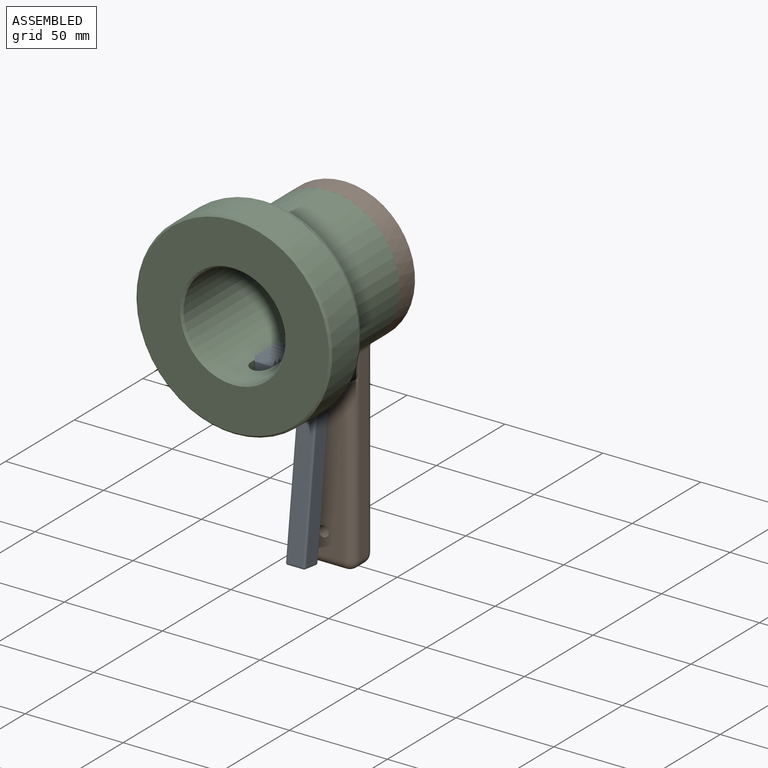
[diagram: assembled view]
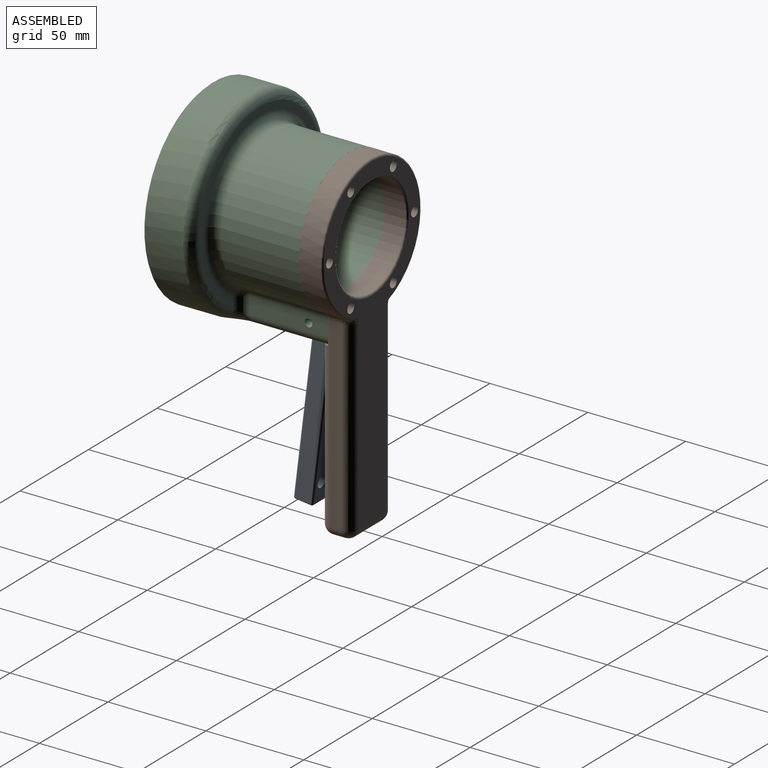
[diagram: assembled view, second angle]
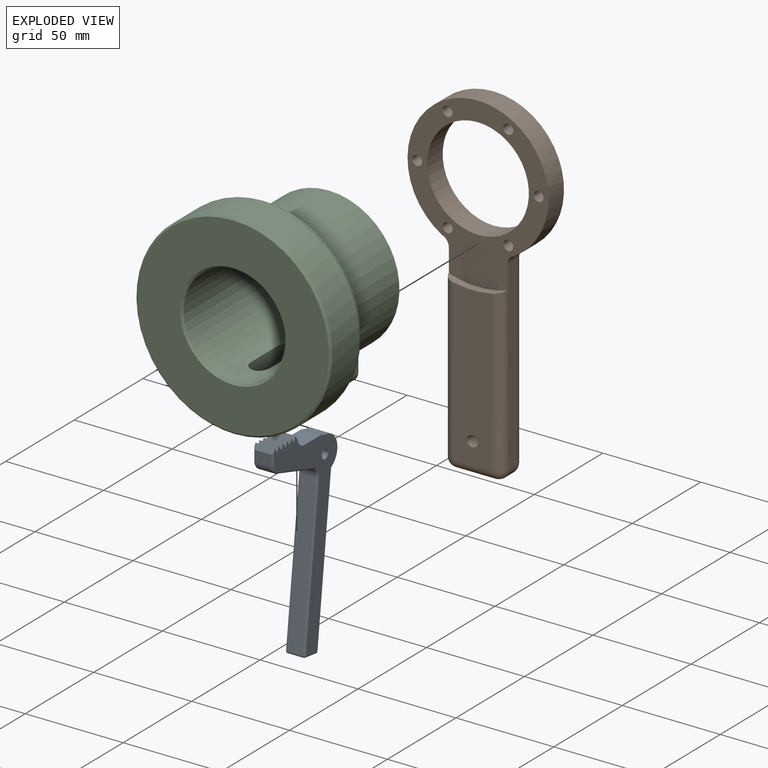
[diagram: exploded view]
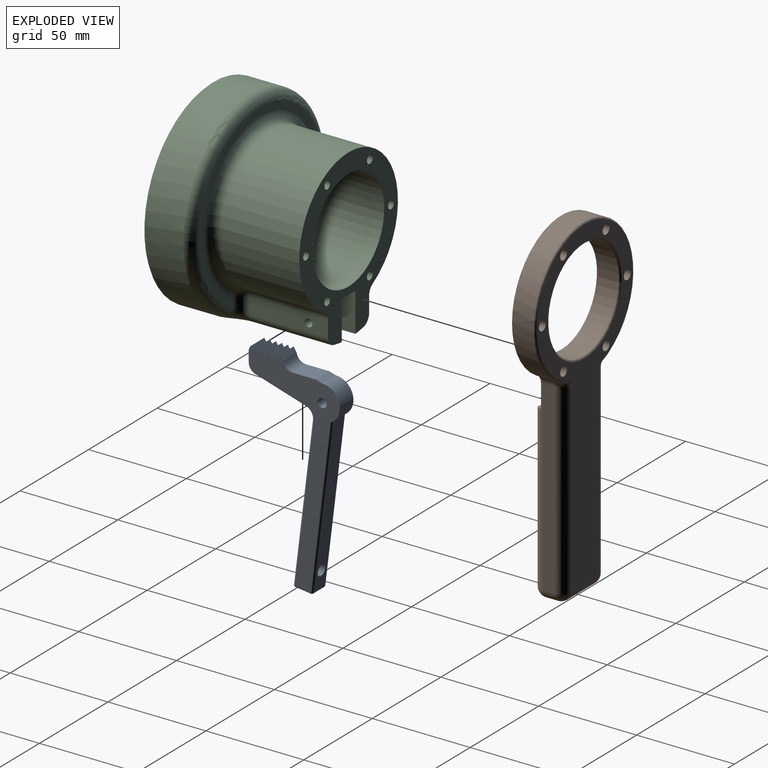
[diagram: exploded view, second angle]
ASSEMBLY  parts=3 mates=3
PART A: 48 faces, bbox 106.5x10x47.4 mm
  f0: plane 10x2.6mm, normal (-0.5,0,-0.87), area 30mm2, adj f1,f19,f21,f22
  f1: plane 10x2.6mm, normal (-0.5,0,0.87), area 30mm2, adj f0,f2,f21,f22
  f2: plane 10x2.6mm, normal (-0.5,0,-0.87), area 30mm2, adj f1,f3,f21,f22
  f3: plane 10x2.6mm, normal (-0.5,0,0.87), area 30mm2, adj f2,f4,f21,f22
  f4: plane 10x2.6mm, normal (-0.5,0,-0.87), area 29.2mm2, adj f3,f5,f21,f22,f26,f45
  f5: plane 8x5.34mm, normal (0,0,-1), area 42.7mm2, adj f4,f23,f26,f45
  f6: plane 25.76x8mm, normal (0.96,0,-0.29), area 215.2mm2, adj f23,f24,f28,f43
  f7: plane 78.56x9.65mm, normal (-0.12,0,-0.99), area 633.2mm2, adj f24,f32,f38,f41
  f8: plane 8x7.94mm, normal (0.99,0,-0.12), area 64mm2, adj f33,f34,f38,f39
  f9: plane 81.68x10.03mm, normal (0.12,0,0.99), area 634.6mm2, adj f10,f29,f34,f35,f47
  f10: cylinder r=9mm len=17.04mm, axis (0,1,0), area 228.6mm2, adj f9,f11,f21,f22,f29,f35
  f11: plane 10x3.31mm, normal (-0.96,0,0.29), area 34.6mm2, adj f10,f12,f21,f22
  f12: plane 11.79x10mm, normal (-1,0,0), area 117.9mm2, adj f11,f21,f22,f25
  f13: plane 10x2.6mm, normal (-0.5,0,0.87), area 30mm2, adj f14,f21,f22,f25
  f14: plane 10x2.6mm, normal (-0.5,0,-0.87), area 30mm2, adj f13,f15,f21,f22
  f15: plane 10x2.6mm, normal (-0.5,0,0.87), area 30mm2, adj f14,f16,f21,f22
  f16: plane 10x2.6mm, normal (-0.5,0,-0.87), area 30mm2, adj f15,f17,f21,f22
  f17: plane 10x2.6mm, normal (-0.5,0,0.87), area 30mm2, adj f16,f18,f21,f22
  f18: plane 10x2.6mm, normal (-0.5,0,-0.87), area 30mm2, adj f17,f19,f21,f22
  f19: plane 10x2.6mm, normal (-0.5,0,0.87), area 30mm2, adj f0,f18,f21,f22
  f20: cylinder r=2.3mm len=10mm, axis (0,1,0), area 144.5mm2, adj f21,f22
  f21: plane 105.55x46mm, normal (0,-1,0), area 1231.3mm2, adj f0,f1,f2,f3,f4,f10,f11,f12
  f22: plane 105.55x46mm, normal (0,1,0), area 1231.3mm2, adj f0,f1,f2,f3,f4,f10,f11,f12
  f23: cylinder r=5mm len=8mm, axis (0,1,0), area 51.1mm2, adj f5,f6,f27,f44
  f24: cylinder r=5mm len=8mm, axis (0,-1,0), area 56mm2, adj f6,f7,f30,f42
  f25: cylinder r=5mm len=10mm, axis (0,-1,0), area 68.5mm2, adj f12,f13,f21,f22
  f26: cylinder r=1mm len=7.07mm, axis (-1,0,0), area 9.4mm2, adj f4,f5,f21,f27
  f27: torus R=4mm, axis (0,-1,0), area 9.3mm2, adj f21,f23,f26,f28
  f28: cylinder r=1mm len=26.05mm, axis (-0.29,0,-0.96), area 42.3mm2, adj f6,f21,f27,f30
  f29: cylinder r=1mm len=81.8mm, axis (0.99,0,-0.12), area 128.8mm2, adj f9,f10,f21,f31
  f30: torus R=6mm, axis (0,-1,0), area 11.8mm2, adj f21,f24,f28,f32
  f31: sphere r=1mm, area 1.6mm2, adj f29,f33,f34
  f32: cylinder r=1mm len=78.68mm, axis (-0.99,0,0.12), area 124.3mm2, adj f7,f21,f30,f36
  f33: cylinder r=1mm len=8.06mm, axis (-0.12,0,-0.99), area 12.6mm2, adj f8,f21,f31,f36
  f34: cylinder r=1mm len=8mm, axis (0,1,0), area 12.6mm2, adj f8,f9,f31,f37
  f35: cylinder r=1mm len=81.8mm, axis (-0.99,0,0.12), area 128.8mm2, adj f9,f10,f22,f37
  f36: sphere r=1mm, area 1.6mm2, adj f32,f33,f38
  f37: sphere r=1mm, area 1.5mm2, adj f34,f35,f39
  f38: cylinder r=1mm len=8mm, axis (0,1,0), area 12.6mm2, adj f7,f8,f36,f40
  f39: cylinder r=1mm len=8.06mm, axis (0.12,0,0.99), area 12.6mm2, adj f8,f22,f37,f40
  f40: sphere r=1mm, area 1.6mm2, adj f38,f39,f41
  f41: cylinder r=1mm len=78.68mm, axis (0.99,0,-0.12), area 124.3mm2, adj f7,f22,f40,f42
  f42: torus R=6mm, axis (0,-1,0), area 11.8mm2, adj f22,f24,f41,f43
  f43: cylinder r=1mm len=26.05mm, axis (0.29,0,0.96), area 42.3mm2, adj f6,f22,f42,f44
  f44: torus R=4mm, axis (0,-1,0), area 9.3mm2, adj f22,f23,f43,f45
  f45: cylinder r=1mm len=7.07mm, axis (1,0,0), area 9.4mm2, adj f4,f5,f22,f44
  f46: cone r=0mm half-angle=59deg, axis (0.12,0,0.99), area 27.7mm2, adj f47
  f47: cylinder r=2.75mm len=7.62mm, axis (0.12,0,0.99), area 121mm2, adj f9,f46
PART B: 37 faces, bbox 78.4x16.5x175.4 mm
  f0: plane 86x72mm, normal (0,-1,0), area 2258.7mm2, adj f1,f2,f7,f8,f9,f10,f11,f12
  f1: cylinder r=36mm len=72mm, axis (0,1,0), area 2083.6mm2, adj f0,f14,f15,f16,f29,f32
  f2: cylinder r=26mm len=52mm, axis (0,1,0), area 1797mm2, adj f0,f13
  f3: plane 166.47x70.47mm, normal (0,1,0), area 3369.3mm2, adj f7,f8,f9,f10,f11,f12,f13,f14
  f4: plane 95.21x6mm, normal (-1,0,0), area 571.3mm2, adj f15,f24,f27,f33
  f5: plane 95.21x6mm, normal (1,0,0), area 571.3mm2, adj f16,f20,f21,f30
  f6: plane 20x6mm, normal (0,0,-1), area 120mm2, adj f20,f22,f24,f25
  f7: cylinder r=2.5mm len=12mm, axis (0,-1,0), area 188.5mm2, adj f0,f3
  f8: cylinder r=2.5mm len=12mm, axis (0,-1,0), area 188.5mm2, adj f0,f3
  f9: cylinder r=2.5mm len=12mm, axis (0,-1,0), area 188.5mm2, adj f0,f3
  f10: cylinder r=2.5mm len=12mm, axis (0,-1,0), area 188.5mm2, adj f0,f3
  f11: cylinder r=2.5mm len=12mm, axis (0,-1,0), area 188.5mm2, adj f0,f3
  f12: cylinder r=2.5mm len=12mm, axis (0,-1,0), area 188.5mm2, adj f0,f3
  f13: torus R=27mm, axis (0,-1,0), area 260.2mm2, adj f2,f3
  f14: torus R=35mm, axis (0,-1,0), area 294.7mm2, adj f1,f3,f19,f28
  f15: cylinder r=5mm len=10mm, axis (0,1,0), area 42.4mm2, adj f1,f4,f28,f32
  f16: cylinder r=5mm len=10mm, axis (0,1,0), area 42.4mm2, adj f1,f5,f19,f29
  f17: cylinder r=50mm len=29.8mm, axis (0,1,0), area 100.8mm2, adj f0,f18,f30,f33
  f18: plane 82.01x20mm, normal (0,-1,0), area 1602.9mm2, adj f17,f22,f30,f33,f36
  f19: bspline ~7.56x5.24mm, area 30.4mm2, adj f3,f14,f16,f21
  f20: cylinder r=5mm len=6mm, axis (0,-1,0), area 47.1mm2, adj f5,f6,f23,f31
  f21: cylinder r=5mm len=95.21mm, axis (0,0,1), area 747.8mm2, adj f3,f5,f19,f23
  f22: cylinder r=5mm len=20mm, axis (-1,0,0), area 157.1mm2, adj f6,f18,f31,f34
  f23: sphere r=5mm, area 39.3mm2, adj f20,f21,f25
  f24: cylinder r=5mm len=6mm, axis (0,1,0), area 47.1mm2, adj f4,f6,f26,f34
  f25: cylinder r=5mm len=20mm, axis (1,0,0), area 157.1mm2, adj f3,f6,f23,f26
  f26: sphere r=5mm, area 39.3mm2, adj f24,f25,f27
  f27: cylinder r=5mm len=95.21mm, axis (0,0,-1), area 747.8mm2, adj f3,f4,f26,f28
  f28: bspline ~7.56x5.24mm, area 30.4mm2, adj f3,f14,f15,f27
  f29: torus R=10mm, axis (0,-1,0), area 5.9mm2, adj f0,f1,f16,f30
  f30: cylinder r=5mm len=95.21mm, axis (0,0,1), area 661.7mm2, adj f0,f5,f17,f18,f29,f31
  f31: sphere r=5mm, area 39.3mm2, adj f20,f22,f30
  f32: torus R=10mm, axis (0,-1,0), area 5.9mm2, adj f0,f1,f15,f33
  f33: cylinder r=5mm len=95.21mm, axis (0,0,1), area 661.7mm2, adj f0,f4,f17,f18,f32,f34
  f34: sphere r=5mm, area 39.3mm2, adj f22,f24,f33
  f35: cone r=0mm half-angle=59deg, axis (0,-1,0), area 27.7mm2, adj f36
  f36: cylinder r=2.75mm len=12mm, axis (0,-1,0), area 207.3mm2, adj f18,f35
PART C: 41 faces, bbox 108.2x70x104.1 mm
  f0: cylinder r=50mm len=100mm, axis (0,1,0), area 6598.8mm2, adj f1,f16,f17,f18,f19,f20,f21,f22
  f1: plane 85.75x72mm, normal (0,1,0), area 2089.5mm2, adj f0,f4,f6,f7,f8,f10,f13,f16
  f2: cylinder r=5mm len=10mm, axis (0,0,-1), area 62.7mm2, adj f6,f22,f23,f38
  f3: plane 90x85.31mm, normal (0,1,0), area 914.3mm2, adj f9,f12,f15,f18
  f4: cylinder r=36mm len=72mm, axis (0,-1,0), area 7580.2mm2, adj f1,f10,f12,f13
  f5: plane 98x98mm, normal (0,-1,0), area 5252.7mm2, adj f24,f25
  f6: cylinder r=26mm len=69mm, axis (0,1,0), area 10991.9mm2, adj f1,f2,f21,f22,f23,f24
  f7: plane 40x8.08mm, normal (1,0,0), area 310.8mm2, adj f1,f13,f15,f20,f40
  f8: plane 40x8.08mm, normal (-1,0,0), area 310.8mm2, adj f1,f9,f10,f16,f39
  f9: cylinder r=5mm len=8.08mm, axis (0,0,-1), area 54.7mm2, adj f3,f8,f11,f17
  f10: cylinder r=5mm len=40mm, axis (0,-1,0), area 212.2mm2, adj f1,f4,f8,f11
  f11: sphere r=5mm, area 26.5mm2, adj f9,f10,f12
  f12: torus R=41mm, axis (0,-1,0), area 1563.5mm2, adj f3,f4,f11,f14
  f13: cylinder r=5mm len=40mm, axis (0,-1,0), area 212.2mm2, adj f1,f4,f7,f14
  f14: sphere r=5mm, area 26.5mm2, adj f12,f13,f15
  f15: cylinder r=5mm len=8.08mm, axis (0,0,1), area 54.7mm2, adj f3,f7,f14,f19
  f16: cylinder r=5mm len=40mm, axis (0,1,0), area 269.3mm2, adj f0,f1,f8,f17
  f17: bspline ~12.54x11.1mm, area 86.1mm2, adj f0,f9,f16,f18
  f18: torus R=45mm, axis (0,-1,0), area 2029.2mm2, adj f0,f3,f17,f19
  f19: bspline ~11.47x11.1mm, area 86.1mm2, adj f0,f15,f18,f20
  f20: cylinder r=5mm len=40mm, axis (0,1,0), area 269.3mm2, adj f0,f1,f7,f19
  f21: cylinder r=5mm len=24.49mm, axis (0,0,-1), area 378.8mm2, adj f0,f6,f22,f23
  f22: plane 50x24.23mm, normal (-1,0,0), area 1072.1mm2, adj f0,f1,f2,f6,f21,f38,f40
  f23: plane 50x24.23mm, normal (1,0,0), area 1072.1mm2, adj f0,f1,f2,f6,f21,f38,f39
  f24: cone r=27mm half-angle=45deg, axis (0,-1,0), area 235.5mm2, adj f5,f6
  f25: cone r=49mm half-angle=45deg, axis (0,1,0), area 439.8mm2, adj f0,f5
  f26: cone r=0mm half-angle=59deg, axis (0,1,0), area 16.2mm2, adj f27
  f27: cylinder r=2.1mm len=12.4mm, axis (0,1,0), area 163.6mm2, adj f1,f26
  f28: cone r=0mm half-angle=59deg, axis (0,1,0), area 16.2mm2, adj f29
  f29: cylinder r=2.1mm len=12.4mm, axis (0,1,0), area 163.6mm2, adj f1,f28
  f30: cone r=0mm half-angle=59deg, axis (0,1,0), area 16.2mm2, adj f31
  f31: cylinder r=2.1mm len=12.4mm, axis (0,1,0), area 163.6mm2, adj f1,f30
  f32: cone r=0mm half-angle=59deg, axis (0,1,0), area 16.2mm2, adj f33
  f33: cylinder r=2.1mm len=12.4mm, axis (0,1,0), area 163.6mm2, adj f1,f32
  f34: cone r=0mm half-angle=59deg, axis (0,1,0), area 16.2mm2, adj f35
  f35: cylinder r=2.1mm len=12.4mm, axis (0,1,0), area 163.6mm2, adj f1,f34
  f36: cone r=0mm half-angle=59deg, axis (0,1,0), area 16.2mm2, adj f37
  f37: cylinder r=2.1mm len=12.4mm, axis (0,1,0), area 163.6mm2, adj f1,f36
  f38: plane 30x10mm, normal (0,0,-1), area 260.7mm2, adj f1,f2,f22,f23
  f39: cylinder r=2mm len=10mm, axis (1,0,0), area 125.7mm2, adj f8,f23
  f40: cylinder r=2mm len=10mm, axis (1,0,0), area 125.7mm2, adj f7,f22
PLACE A rot(axis=(-0.58,0.58,0.58),120deg) t=(-39.8,18.52,-28.29)mm
PLACE B t=(-34.8,40.52,11.46)mm
PLACE C t=(-34.8,-16.48,11.46)mm
MATE cylindrical B.f12 <-> C.f28  axis (0,1,0) through (-65.8,40.52,11.46)mm
MATE revolute A.f20 <-> C.f39  axis (-1,0,0) through (-39.8,18.52,-28.29)mm
MATE fastened C.f34 <-> B.f9  axis (0,1,0) through (-3.8,28.52,11.46)mm
